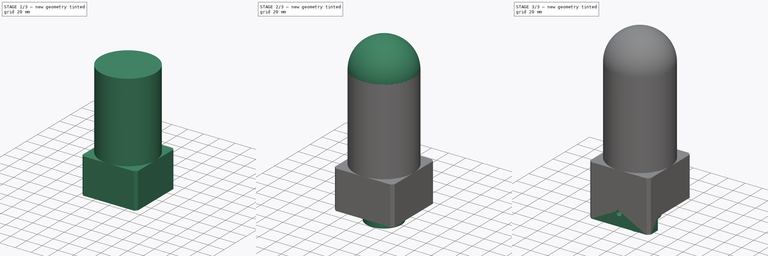
[diagram: build sequence overview — one tinted view per stage of 3, left to right]
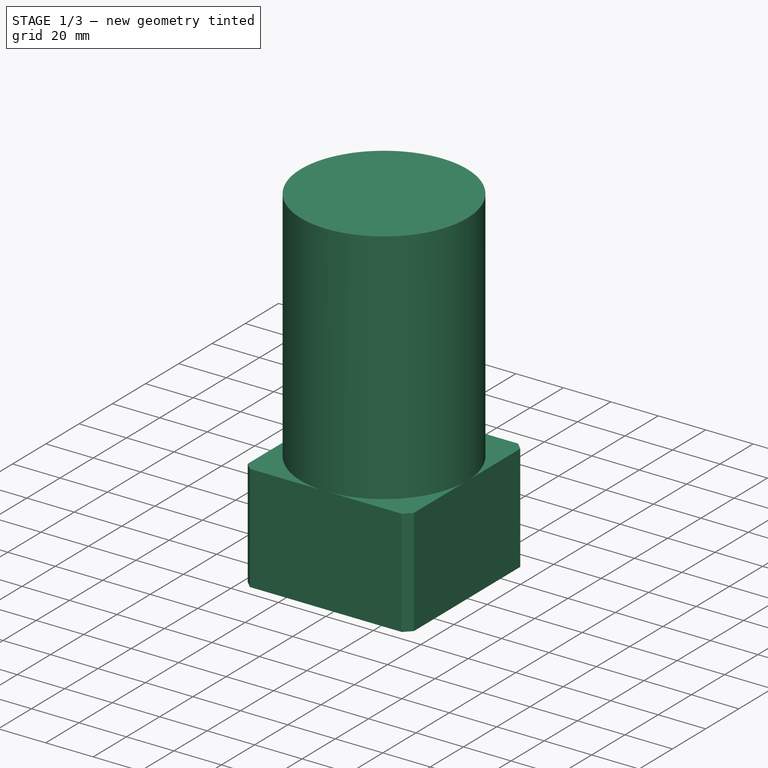
[diagram: stage 1 of 3 — iso view after this stage's code; geometry added in this stage tinted green]
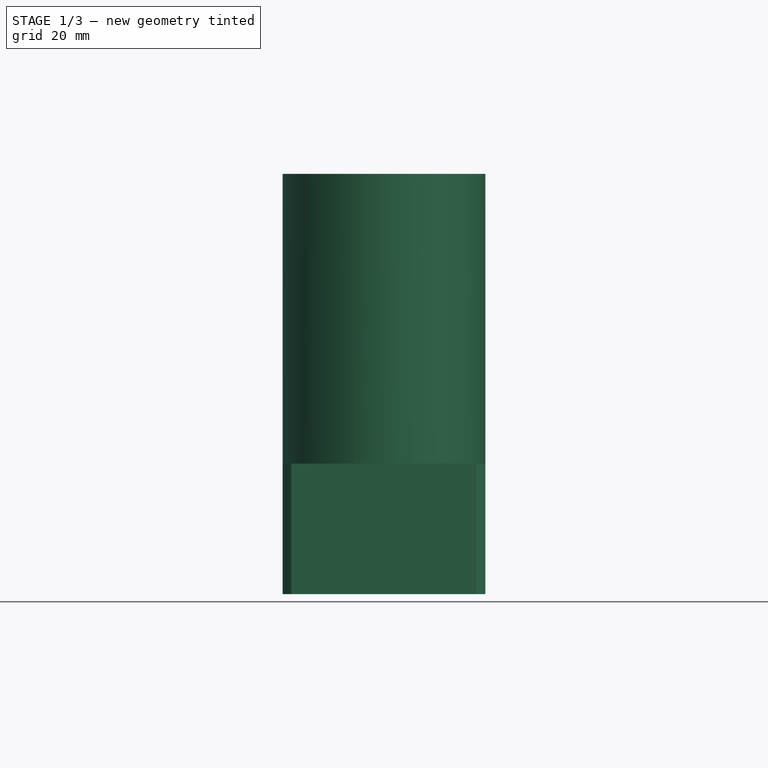
[diagram: stage 1 of 3 — front view after this stage's code; geometry added in this stage tinted green]
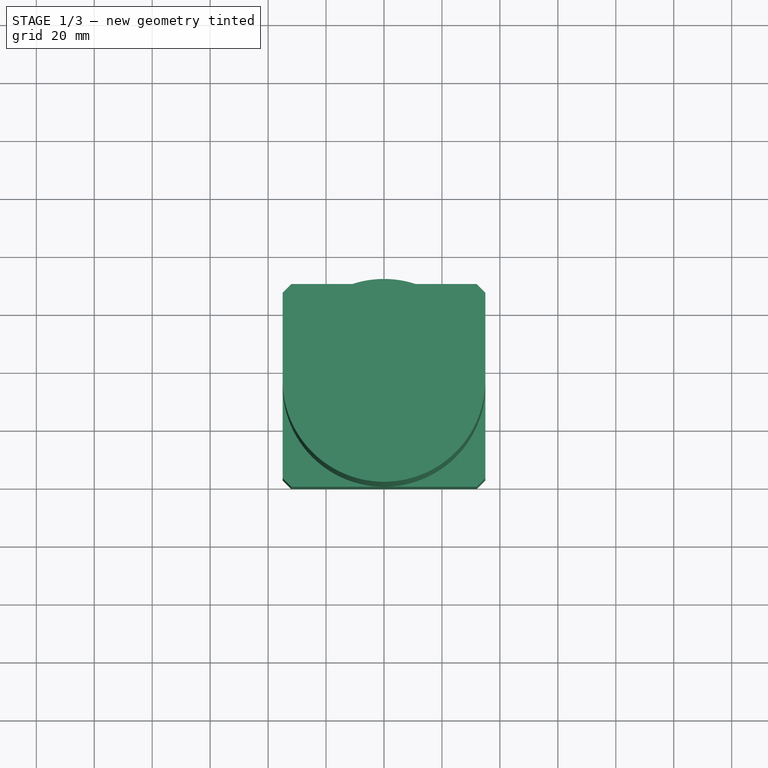
[diagram: stage 1 of 3 — top view after this stage's code; geometry added in this stage tinted green]
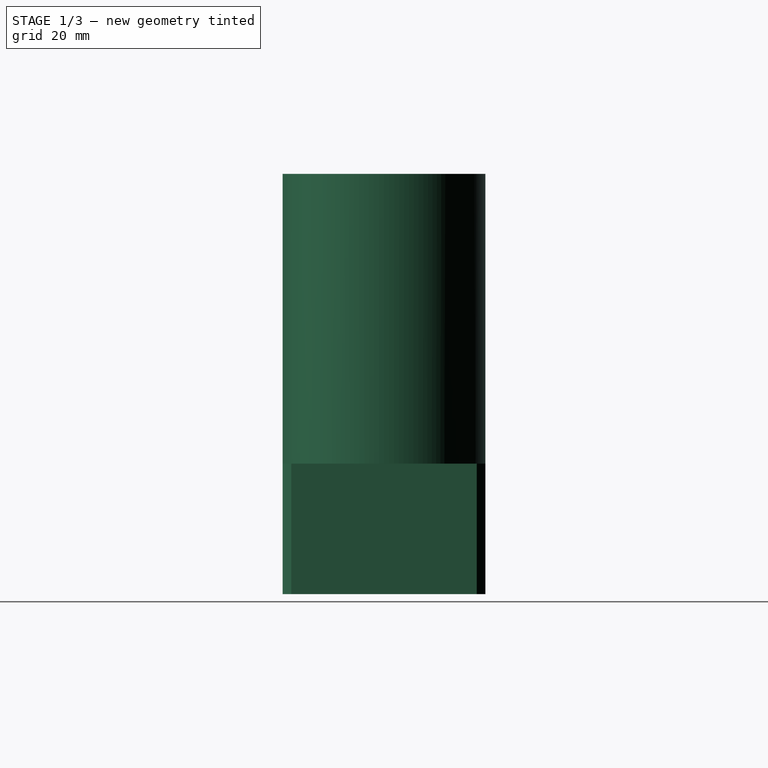
[diagram: stage 1 of 3 — right view after this stage's code; geometry added in this stage tinted green]
FCSTD DOCUMENT  (FreeCAD 0.14R3702 (Git))
Label: router
License: CC-BY 3.0
LicenseURL: http://creativecommons.org/licenses/by/3.0/
objects: Sketcher::SketchObject×8, PartDesign::Pad×5, PartDesign::Pocket×2, PartDesign::Revolution×1
note: 24 computed .brp shape members not serialized (recipe doc carries the construction recipe); baked Part::Feature solids carry a one-line shape summary decoded from their .brp

FEATURE [Sketcher::SketchObject] Sketch
  sketch-geometry (4):
    g0: LineSegment StartX=-35 StartY=70 StartZ=0 EndX=35 EndY=70 EndZ=0
    g1: LineSegment StartX=35 StartY=70 StartZ=0 EndX=35 EndY=0 EndZ=0
    g2: LineSegment StartX=35 StartY=0 StartZ=0 EndX=-35 EndY=0 EndZ=0
    g3: LineSegment StartX=-35 StartY=0 StartZ=0 EndX=-35 EndY=70 EndZ=0
  constraints (12):
    c: Coincident(g0,g1)
    c: Coincident(g1,g2)
    c: Coincident(g2,g3)
    c: Coincident(g3,g0)
    c: Horizontal(g0)
    c: Horizontal(g2)
    c: Vertical(g1)
    c: Vertical(g3)
    c: PointOnObject(g1,g-1)
    c: DistanceX(g2,g1) = 70
    c: DistanceY(g1,g0) = 70
    c: DistanceX(g-1,g2) = -35
FEATURE [PartDesign::Pad] Pad
  Length = 45
  Length2 = 33.15
  Sketch = -> Sketch
  Type = 0
FEATURE [Sketcher::SketchObject] Sketch001
  Placement = pos=(0,0,45) rot=(0,0,1;0rad)
  Support = -> Pad [Face6]
  sketch-geometry (1):
    g0: Circle CenterX=0 CenterY=35 CenterZ=0 NormalX=0 NormalY=0 NormalZ=1 Radius=35
  constraints (3):
    c: PointOnObject(g0,g-2)
    c: PointOnObject(g-1,g0)
    c: Radius(g0) = 35
FEATURE [PartDesign::Pad] Pad001
  Length = 100
  Length2 = 33.15
  Sketch = -> Sketch001
  Type = 0
FEATURE [Sketcher::SketchObject] Sketch002
  ExternalGeometry = -> [Pad001]
  Placement = pos=(0,0,0) rot=(1,0,0;3.14159rad)
  Support = -> Pad001 [Face1]
  sketch-geometry (12):
    g0: LineSegment StartX=35 StartY=0 StartZ=0 EndX=35 EndY=-3 EndZ=0
    g1: LineSegment StartX=35 StartY=0 StartZ=0 EndX=32 EndY=0 EndZ=0
    g2: LineSegment StartX=32 StartY=0 StartZ=0 EndX=35 EndY=-3 EndZ=0
    g3: LineSegment StartX=35 StartY=-70 StartZ=0 EndX=35 EndY=-67 EndZ=0
    g4: LineSegment StartX=35 StartY=-70 StartZ=0 EndX=32 EndY=-70 EndZ=0
    g5: LineSegment StartX=32 StartY=-70 StartZ=0 EndX=35 EndY=-67 EndZ=0
    g6: LineSegment StartX=-35 StartY=-70 StartZ=0 EndX=-32 EndY=-70 EndZ=0
    g7: LineSegment StartX=-35 StartY=-70 StartZ=0 EndX=-35 EndY=-67 EndZ=0
    g8: LineSegment StartX=-35 StartY=-67 StartZ=0 EndX=-32 EndY=-70 EndZ=0
    g9: LineSegment StartX=-35 StartY=0 StartZ=0 EndX=-32 EndY=0 EndZ=0
    g10: LineSegment StartX=-35 StartY=0 StartZ=0 EndX=-35 EndY=-3 EndZ=0
    g11: LineSegment StartX=-35 StartY=-3 StartZ=0 EndX=-32 EndY=0 EndZ=0
  constraints (32):
    c: Coincident(g0,g-3)
    c: Coincident(g1,g0)
    c: Coincident(g2,g1)
    c: Coincident(g2,g0)
    c: Vertical(g0)
    c: Horizontal(g1)
    c: DistanceY(g0,g0) = -3
    c: DistanceX(g0,g1) = -3
    c: Coincident(g3,g-4)
    c: Vertical(g3)
    c: Coincident(g4,g3)
    c: Horizontal(g4)
    c: DistanceY(g3,g3) = 3
    c: DistanceX(g4,g3) = 3
    c: Coincident(g5,g4)
    c: Coincident(g5,g3)
    c: Coincident(g6,g-5)
    c: Horizontal(g6)
    c: Coincident(g7,g6)
    c: Vertical(g7)
    c: DistanceX(g6,g6) = 3
    c: DistanceY(g6,g7) = 3
    c: Coincident(g8,g7)
    c: Coincident(g8,g6)
    c: Coincident(g9,g-6)
    c: Horizontal(g9)
    c: Coincident(g10,g9)
    c: Vertical(g10)
    c: DistanceX(g9,g9) = 3
    c: DistanceY(g9,g10) = -3
    c: Coincident(g11,g10)
    c: Coincident(g11,g9)
FEATURE [PartDesign::Pocket] Pocket
  Length = 70
  Sketch = -> Sketch002
  Type = 0
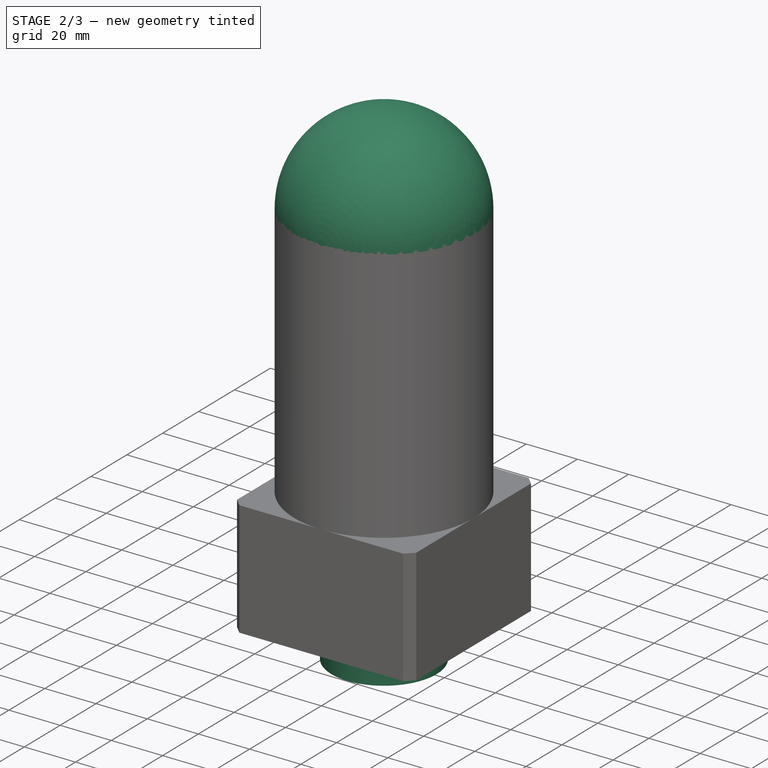
[diagram: stage 2 of 3 — iso view after this stage's code; geometry added in this stage tinted green]
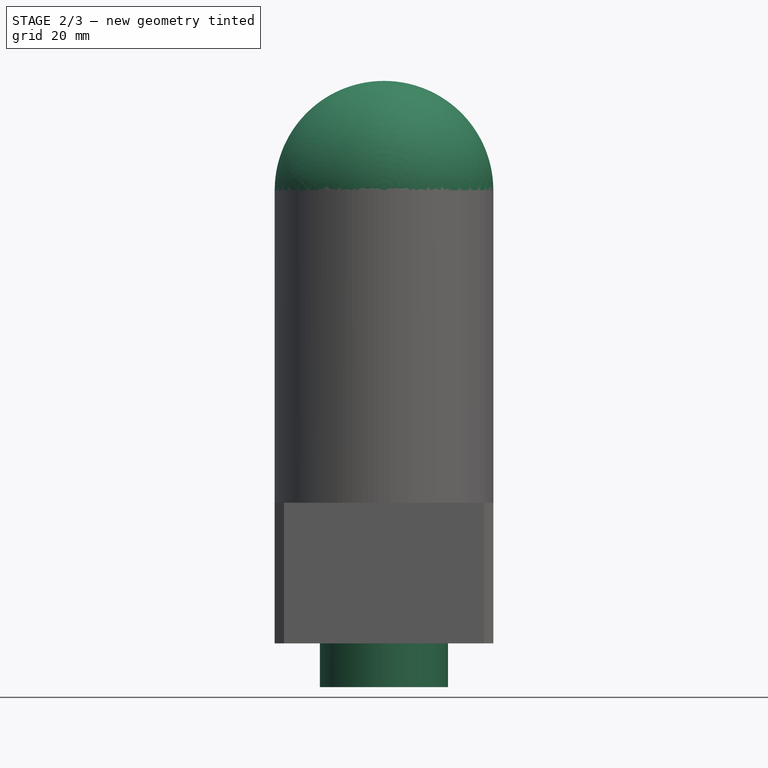
[diagram: stage 2 of 3 — front view after this stage's code; geometry added in this stage tinted green]
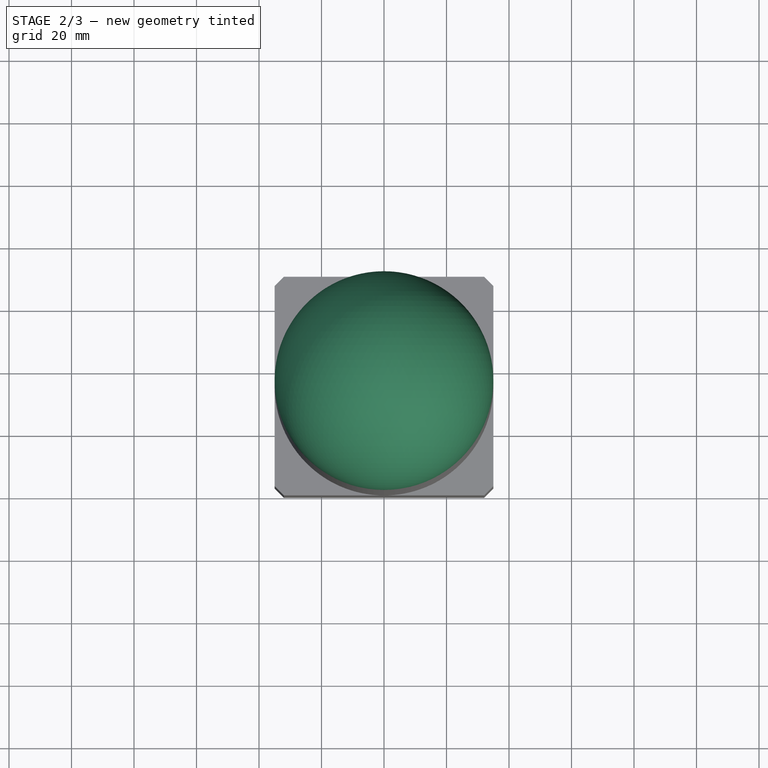
[diagram: stage 2 of 3 — top view after this stage's code; geometry added in this stage tinted green]
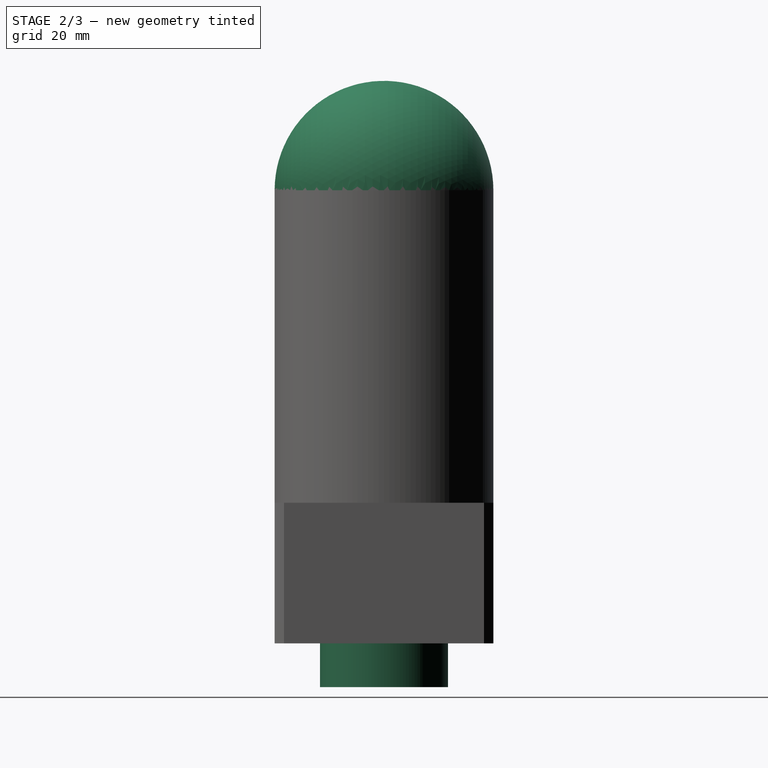
[diagram: stage 2 of 3 — right view after this stage's code; geometry added in this stage tinted green]
FEATURE [Sketcher::SketchObject] Sketch003
  Placement = pos=(0,0,145) rot=(0,0,1;0rad)
  Support = -> Pocket [Face15]
  sketch-geometry (2):
    g0: ArcOfCircle CenterX=0 CenterY=35 CenterZ=0 NormalX=0 NormalY=0 NormalZ=1 Radius=35 StartAngle=4.71239 EndAngle=7.85398
    g1: LineSegment StartX=0 StartY=70 StartZ=0 EndX=0 EndY=0 EndZ=0
  constraints (6):
    c: PointOnObject(g0,g-2)
    c: Coincident(g0,g-1)
    c: PointOnObject(g0,g-2)
    c: Radius(g0) = 35
    c: Coincident(g1,g0)
    c: Coincident(g1,g-1)
FEATURE [PartDesign::Revolution] Revolution
  Angle = 180
  Axis = (0,1,0)
  Base = (0,0,145)
  ReferenceAxis = -> Sketch003 [V_Axis]
  Reversed = true
  Sketch = -> Sketch003
FEATURE [Sketcher::SketchObject] Sketch004
  Placement = pos=(0,0,0) rot=(1,0,0;3.14159rad)
  Support = -> Revolution [Face1]
  sketch-geometry (1):
    g0: Circle CenterX=0 CenterY=-35 CenterZ=0 NormalX=0 NormalY=0 NormalZ=1 Radius=20.5
  constraints (3):
    c: PointOnObject(g0,g-2)
    c: Distance(g-1,g0) = 35
    c: Radius(g0) = 20.5
FEATURE [PartDesign::Pad] Pad002
  Length = 14
  Length2 = 33.15
  Sketch = -> Sketch004
  Type = 0
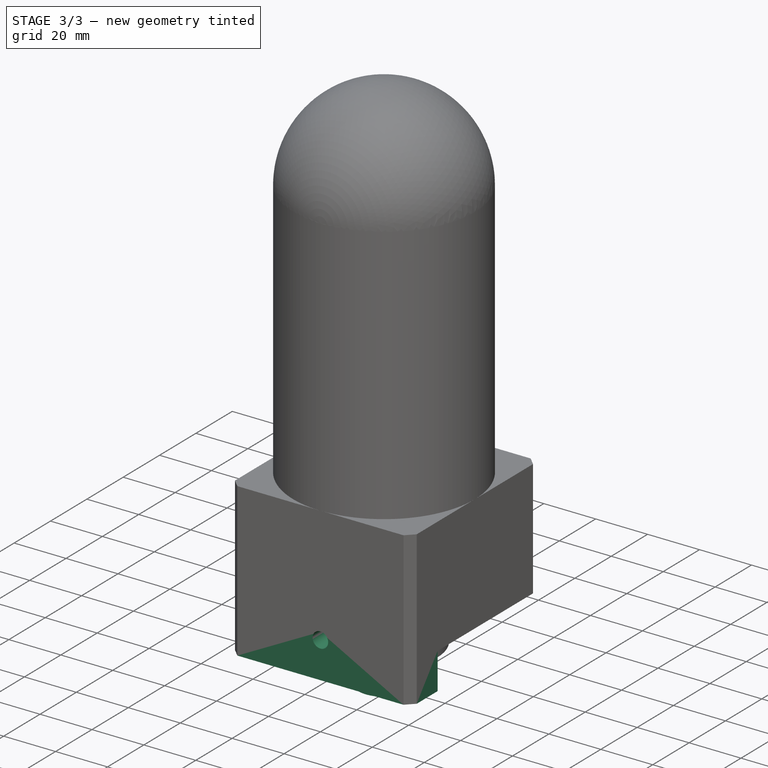
[diagram: stage 3 of 3 — iso view after this stage's code; geometry added in this stage tinted green]
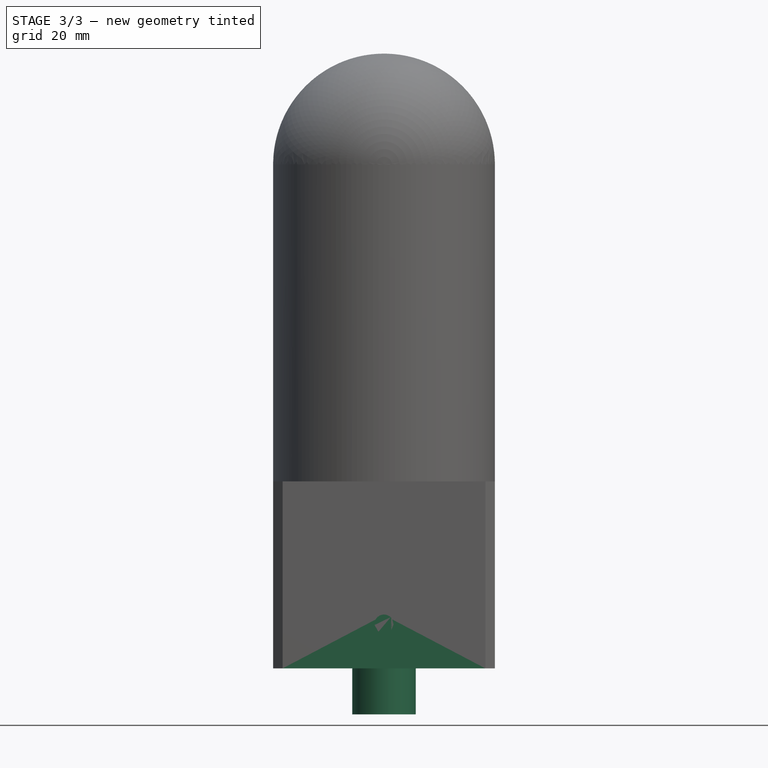
[diagram: stage 3 of 3 — front view after this stage's code; geometry added in this stage tinted green]
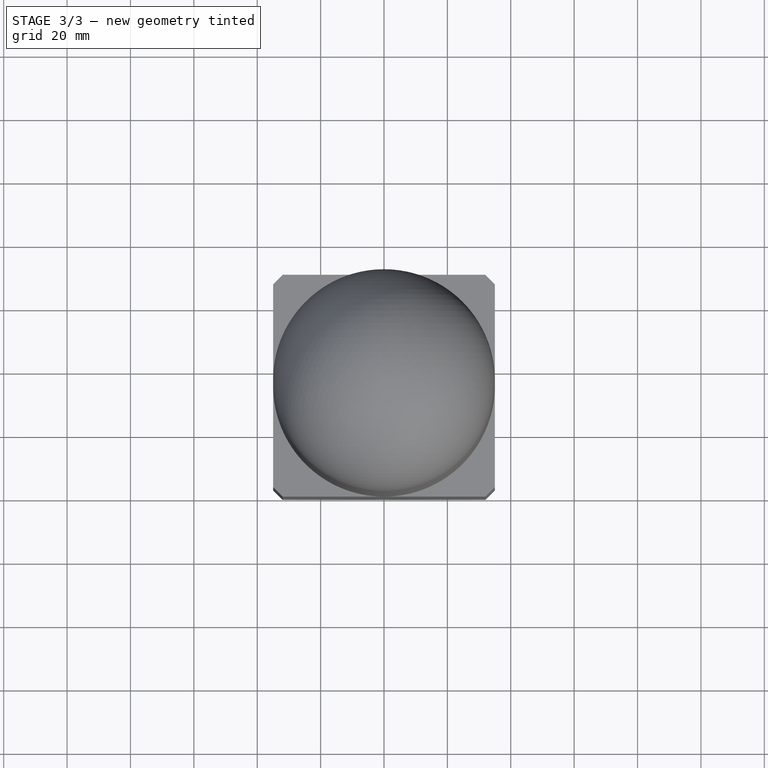
[diagram: stage 3 of 3 — top view after this stage's code; geometry added in this stage tinted green]
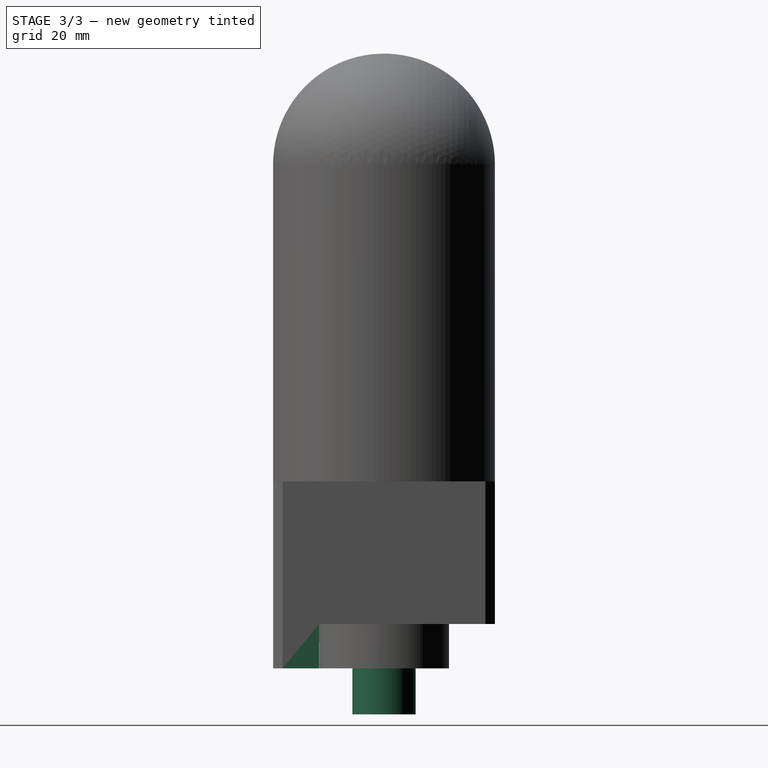
[diagram: stage 3 of 3 — right view after this stage's code; geometry added in this stage tinted green]
FEATURE [Sketcher::SketchObject] Sketch005
  Placement = pos=(0,0,-14) rot=(1,0,0;3.14159rad)
  Support = -> Pad002 [Face1]
  sketch-geometry (1):
    g0: Circle CenterX=0 CenterY=-35 CenterZ=0 NormalX=0 NormalY=0 NormalZ=1 Radius=10
  constraints (3):
    c: PointOnObject(g0,g-2)
    c: Distance(g-1,g0) = 35
    c: Radius(g0) = 10
FEATURE [PartDesign::Pad] Pad003
  Length = 14.5
  Length2 = 33.15
  Sketch = -> Sketch005
  Type = 0
FEATURE [Sketcher::SketchObject] Sketch006
  ExternalGeometry = -> [Pad003]
  Placement = pos=(0,0,0) rot=(1,0,0;3.14159rad)
  Support = -> Pad003 [Face2]
  sketch-geometry (6):
    g0: LineSegment StartX=35 StartY=-3 StartZ=0 EndX=35 EndY=-14.5 EndZ=0
    g1: LineSegment StartX=-35 StartY=-3 StartZ=0 EndX=-35 EndY=-14.5 EndZ=0
    g2: LineSegment StartX=-35 StartY=-3 StartZ=0 EndX=-32 EndY=0 EndZ=0
    g3: LineSegment StartX=-35 StartY=-14.5 StartZ=0 EndX=35 EndY=-14.5 EndZ=0
    g4: LineSegment StartX=32 StartY=0 StartZ=0 EndX=35 EndY=-3 EndZ=0
    g5: LineSegment StartX=32 StartY=0 StartZ=0 EndX=-32 EndY=0 EndZ=0
  constraints (14):
    c: Coincident(g0,g-3)
    c: Vertical(g0)
    c: DistanceY(g0,g0) = -11.5
    c: Coincident(g1,g-4)
    c: Vertical(g1)
    c: DistanceY(g1,g1) = 11.5
    c: Coincident(g2,g1)
    c: Coincident(g2,g-5)
    c: Coincident(g3,g1)
    c: Coincident(g3,g0)
    c: Coincident(g4,g-6)
    c: Coincident(g4,g0)
    c: Coincident(g5,g4)
    c: Coincident(g5,g2)
FEATURE [PartDesign::Pad] Pad004
  Length = 14
  Length2 = 33.15
  Sketch = -> Sketch006
  Type = 0
FEATURE [Sketcher::SketchObject] Sketch007
  Placement = pos=(0,0,0) rot=(1,0,0;1.5708rad)
  Support = -> Pad004 [Face17]
  sketch-geometry (1):
    g0: Circle CenterX=0 CenterY=0 CenterZ=0 NormalX=0 NormalY=0 NormalZ=1 Radius=3
  constraints (2):
    c: Coincident(g0,g-1)
    c: Radius(g0) = 3
FEATURE [PartDesign::Pocket] Pocket001
  Length = 10
  Sketch = -> Sketch007
  Type = 0
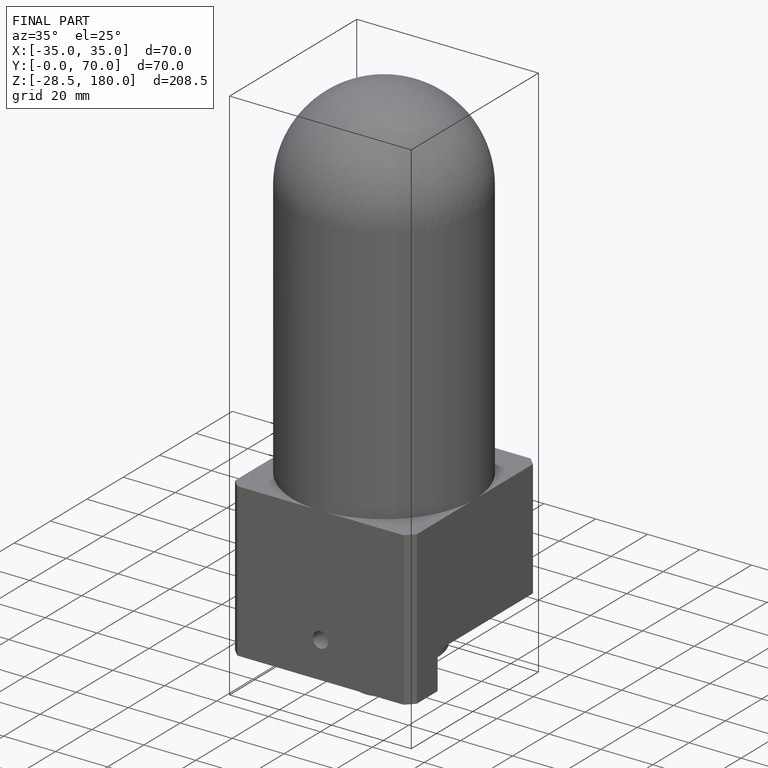
[diagram: finished part — iso view with bounding-box wireframe]
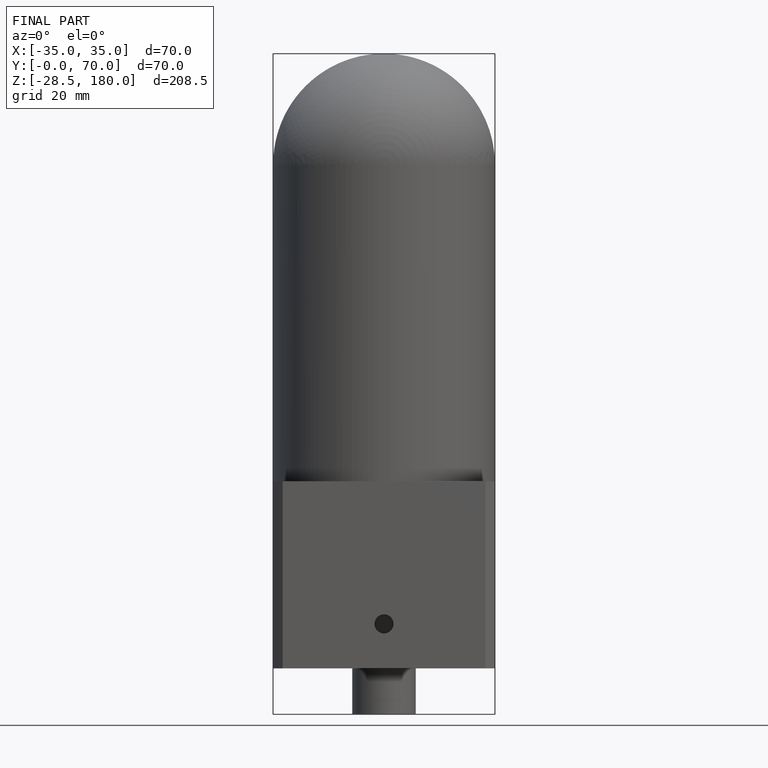
[diagram: finished part — front view with bounding-box wireframe]
